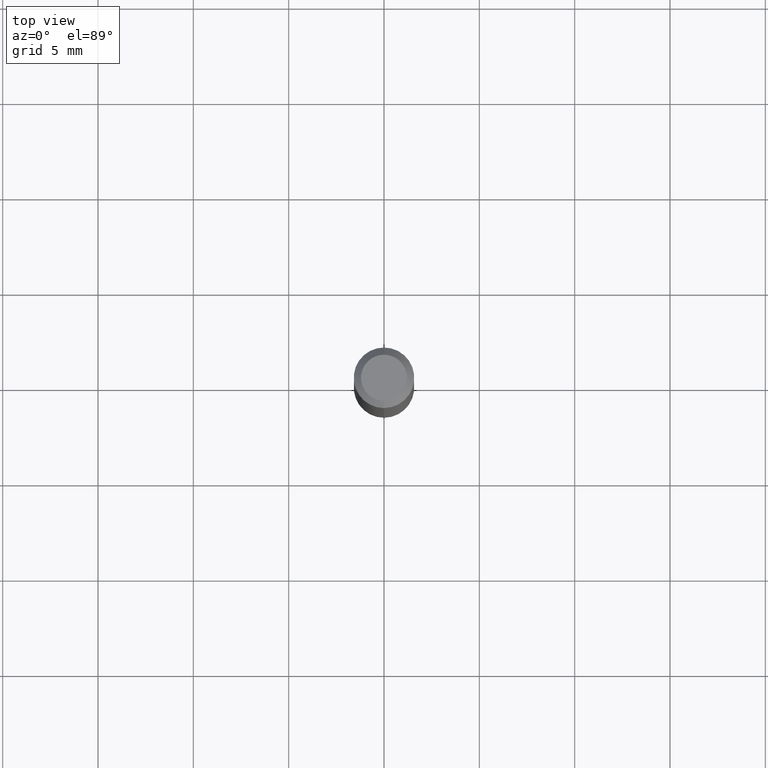
[diagram: clean part render]
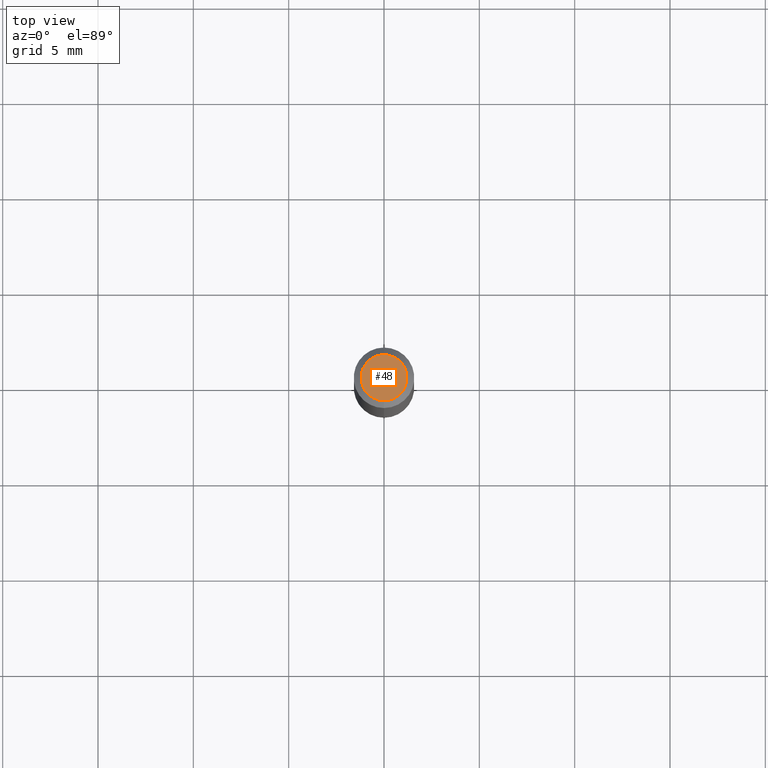
[diagram: same view with one face highlighted and labeled with its STEP entity id]
A machine part, top view. The second image highlights one B-rep face of the part: STEP entity #48.
In plain terms, the highlighted planar face has unit normal (0, -0, -1).
Its self-contained STEP definition (entity closure, byte-faithful):
#5 = EDGE_CURVE ( 'NONE', #304, #309, #97, .T. ) ;
#10 = DIRECTION ( 'NONE',  ( -2.446607092307177715E-29, 3.489851248329160132E-15, 1.000000000000000000 ) ) ;
#48 = ADVANCED_FACE ( 'NONE', ( #190 ), #486, .F. ) ;
#97 = CIRCLE ( 'NONE', #187, 0.04749999999999999362 ) ;
#143 = DIRECTION ( 'NONE',  ( 2.446607092307177434E-29, -3.489851248329160132E-15, -1.000000000000000000 ) ) ;
#187 = AXIS2_PLACEMENT_3D ( 'NONE', #399, #10, #358 ) ;
#190 = FACE_OUTER_BOUND ( 'NONE', #270, .T. ) ;
#215 = AXIS2_PLACEMENT_3D ( 'NONE', #529, #143, #450 ) ;
#270 = EDGE_LOOP ( 'NONE', ( #383, #301 ) ) ;
#301 = ORIENTED_EDGE ( 'NONE', *, *, #390, .T. ) ;
#304 = VERTEX_POINT ( 'NONE', #474 ) ;
#309 = VERTEX_POINT ( 'NONE', #336 ) ;
#336 = CARTESIAN_POINT ( 'NONE',  ( -3.773273898774340269E-16, -0.04749999999999999362, 8.294347292467538093E-17 ) ) ;
#358 = DIRECTION ( 'NONE',  ( -6.982962677686266711E-15, -1.000000000000000000, 3.489851248329160526E-15 ) ) ;
#377 = CARTESIAN_POINT ( 'NONE',  ( 2.031830989219869408E-45, -2.882657469951126378E-31, -8.282446137095973370E-17 ) ) ;
#383 = ORIENTED_EDGE ( 'NONE', *, *, #5, .T. ) ;
#388 = DIRECTION ( 'NONE',  ( -6.982962677686266711E-15, -1.000000000000000000, 3.489851248329160526E-15 ) ) ;
#390 = EDGE_CURVE ( 'NONE', #309, #304, #469, .T. ) ;
#399 = CARTESIAN_POINT ( 'NONE',  ( 2.031830989219869408E-45, -2.882657469951126378E-31, -8.282446137095973370E-17 ) ) ;
#450 = DIRECTION ( 'NONE',  ( 6.982962677686265922E-15, 1.000000000000000000, -3.489851248329160132E-15 ) ) ;
#467 = DIRECTION ( 'NONE',  ( -2.446607092307177715E-29, 3.489851248329160132E-15, 1.000000000000000000 ) ) ;
#469 = CIRCLE ( 'NONE', #500, 0.04749999999999999362 ) ;
#474 = CARTESIAN_POINT ( 'NONE',  ( 3.840629472727447874E-16, 0.04749999999999999362, -2.485923956665948360E-16 ) ) ;
#486 = PLANE ( 'NONE',  #215 ) ;
#500 = AXIS2_PLACEMENT_3D ( 'NONE', #377, #467, #388 ) ;
#529 = CARTESIAN_POINT ( 'NONE',  ( 3.316907271900976096E-16, 0.04749999999999999362, 3.185653446450811793E-17 ) ) ;